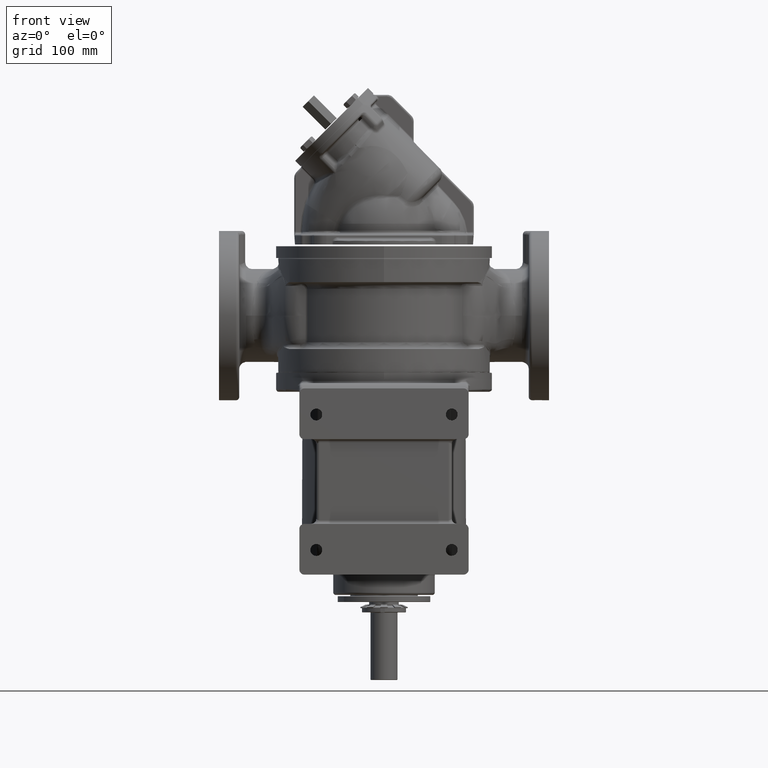
[diagram: clean part render]
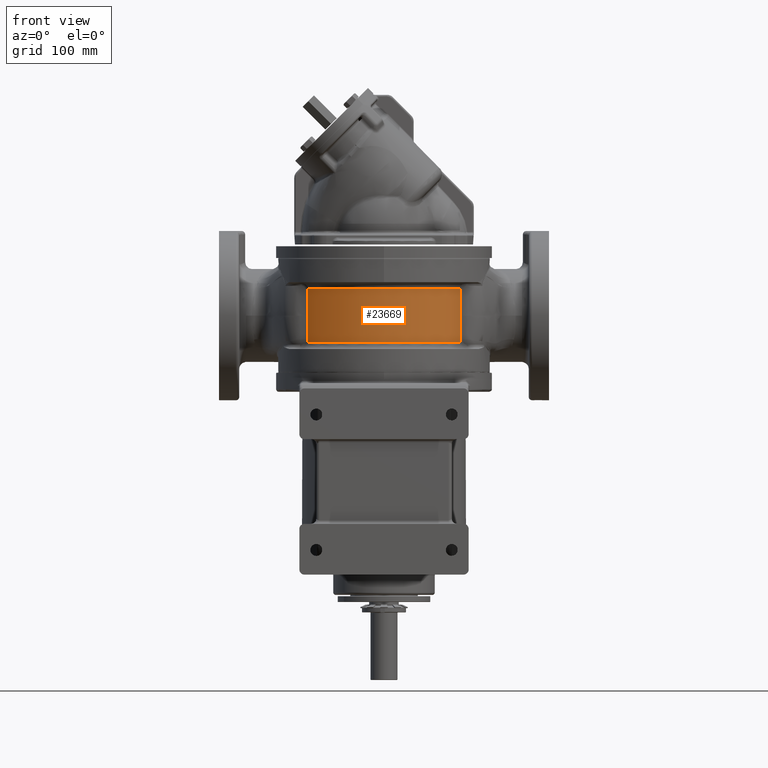
[diagram: same view with one face highlighted and labeled with its STEP entity id]
A machine part, front view. The second image highlights one B-rep face of the part: STEP entity #23669.
In plain terms, the highlighted cylindrical surface (partial cylindrical patch) has radius 109.5 mm, axis along (0, 0, 1).
Its self-contained STEP definition (entity closure, byte-faithful):
#3572=CARTESIAN_POINT('',(8.999031359892E1,-6.238584328480E1,4.835238431234E1));
#3573=CARTESIAN_POINT('',(8.999117552181E1,-6.238460036456E1,4.816861729059E1));
#3574=CARTESIAN_POINT('',(8.999577468744E1,-6.237796598252E1,4.780084763047E1));
#3575=CARTESIAN_POINT('',(9.001133770941E1,-6.235550883299E1,4.724811531999E1));
#3576=CARTESIAN_POINT('',(9.003557460130E1,-6.232051132897E1,4.669542013181E1));
#3577=CARTESIAN_POINT('',(9.006846689752E1,-6.227296912795E1,4.614343538226E1));
#3578=CARTESIAN_POINT('',(9.010996342124E1,-6.221291381492E1,4.559294146329E1));
#3579=CARTESIAN_POINT('',(9.015999085128E1,-6.214039809822E1,4.504460606646E1));
#3580=CARTESIAN_POINT('',(9.019892317816E1,-6.208385960216E1,4.468121546604E1));
#3581=CARTESIAN_POINT('',(9.021978270765E1,-6.205353179461E1,4.45E1));
#3583=CARTESIAN_POINT('',(1.862325559044E-14,1.486170166156E-14,4.45E1));
#3584=DIRECTION('',(0.E0,0.E0,1.E0));
#3585=DIRECTION('',(-8.239249562342E-1,-5.666989204987E-1,0.E0));
#3586=AXIS2_PLACEMENT_3D('',#3583,#3584,#3585);
#3588=CARTESIAN_POINT('',(-9.021978270765E1,-6.205353179461E1,4.45E1));
#3589=CARTESIAN_POINT('',(-9.019892287175E1,-6.208386004676E1,
4.468121808366E1));
#3590=CARTESIAN_POINT('',(-9.015999014153E1,-6.214039912868E1,
4.504461272539E1));
#3591=CARTESIAN_POINT('',(-9.010996267264E1,-6.221291489897E1,
4.559295004855E1));
#3592=CARTESIAN_POINT('',(-9.006846639574E1,-6.227296985355E1,
4.614344325430E1));
#3593=CARTESIAN_POINT('',(-9.003557428477E1,-6.232051178629E1,
4.669542597566E1));
#3594=CARTESIAN_POINT('',(-9.001133759793E1,-6.235550899346E1,
4.724811889659E1));
#3595=CARTESIAN_POINT('',(-8.999577468292E1,-6.237796599056E1,
4.780084888049E1));
#3596=CARTESIAN_POINT('',(-8.999117551974E1,-6.238460036428E1,
4.816861763772E1));
#3597=CARTESIAN_POINT('',(-8.999031359891E1,-6.238584328480E1,
4.835238431297E1));
#3599=CARTESIAN_POINT('',(-8.999031359891E1,-6.238584328480E1,
4.835238431297E1));
#3600=CARTESIAN_POINT('',(-8.997790777881E1,-6.240373717907E1,
5.100501328796E1));
#3601=CARTESIAN_POINT('',(-8.995916667424E1,-6.243075158706E1,
5.658980688493E1));
#3602=CARTESIAN_POINT('',(-8.994816945007E1,-6.244659125008E1,
6.580377580630E1));
#3603=CARTESIAN_POINT('',(-8.994758927249E1,-6.244742787812E1,
7.250783253117E1));
#3604=CARTESIAN_POINT('',(-8.994766737899E1,-6.244731489653E1,
7.599991781237E1));
#3606=CARTESIAN_POINT('',(-8.994766737899E1,-6.244731489653E1,
7.599991781237E1));
#3607=CARTESIAN_POINT('',(-8.994763776395E1,-6.244735734356E1,
7.969019512529E1));
#3608=CARTESIAN_POINT('',(-8.995469851128E1,-6.243718911470E1,
8.694093887418E1));
#3609=CARTESIAN_POINT('',(-8.998602794155E1,-6.239203912366E1,
9.718744253901E1));
#3610=CARTESIAN_POINT('',(-9.002172913101E1,-6.234051395286E1,
1.040790623278E2));
#3611=CARTESIAN_POINT('',(-9.004301205830E1,-6.230975830051E1,1.075E2));
#3613=CARTESIAN_POINT('',(2.618378289298E-14,-1.311591855899E-14,1.075E2));
#3614=DIRECTION('',(0.E0,0.E0,-1.E0));
#3615=DIRECTION('',(8.223106124046E-1,-5.690388885892E-1,0.E0));
#3616=AXIS2_PLACEMENT_3D('',#3613,#3614,#3615);
#3618=CARTESIAN_POINT('',(9.004301205830E1,-6.230975830051E1,1.075E2));
#3619=CARTESIAN_POINT('',(9.002183803751E1,-6.234035653673E1,1.040965566765E2));
#3620=CARTESIAN_POINT('',(8.998620399002E1,-6.239178526578E1,9.722819654097E1));
#3621=CARTESIAN_POINT('',(8.995475368244E1,-6.243710972401E1,8.697591468258E1));
#3622=CARTESIAN_POINT('',(8.994763727957E1,-6.244735792315E1,7.970515582463E1));
#3623=CARTESIAN_POINT('',(8.994766737899E1,-6.244731489653E1,7.599991781235E1));
#3625=CARTESIAN_POINT('',(8.994766737899E1,-6.244731489653E1,7.599991781235E1));
#3626=CARTESIAN_POINT('',(8.994759179015E1,-6.244742378618E1,7.251693971790E1));
#3627=CARTESIAN_POINT('',(8.994815901611E1,-6.244660641722E1,6.582491904482E1));
#3628=CARTESIAN_POINT('',(8.995913536746E1,-6.243079690183E1,5.660181389654E1));
#3629=CARTESIAN_POINT('',(8.997788325681E1,-6.240377196547E1,5.101011320820E1));
#3630=CARTESIAN_POINT('',(8.999031359892E1,-6.238584328480E1,4.835238431234E1));
#4146=CARTESIAN_POINT('',(9.021978270765E1,-6.205353179461E1,4.45E1));
#4239=CARTESIAN_POINT('',(-9.021978270765E1,-6.205353179461E1,4.45E1));
#16956=VERTEX_POINT('',#4146);
#16958=VERTEX_POINT('',#3572);
#16960=VERTEX_POINT('',#3625);
#16962=VERTEX_POINT('',#3618);
#16975=VERTEX_POINT('',#4239);
#16977=VERTEX_POINT('',#3597);
#16979=VERTEX_POINT('',#3604);
#16981=VERTEX_POINT('',#3611);
#23647=CARTESIAN_POINT('',(1.718915557036E-14,2.016856771927E-14,3.255E1));
#23648=DIRECTION('',(0.E0,0.E0,1.E0));
#23649=DIRECTION('',(-1.E0,0.E0,0.E0));
#23650=AXIS2_PLACEMENT_3D('',#23647,#23648,#23649);
#23651=CYLINDRICAL_SURFACE('',#23650,1.095E2);
#23653=ORIENTED_EDGE('',*,*,#23652,.T.);
#23655=ORIENTED_EDGE('',*,*,#23654,.F.);
#23657=ORIENTED_EDGE('',*,*,#23656,.T.);
#23659=ORIENTED_EDGE('',*,*,#23658,.T.);
#23661=ORIENTED_EDGE('',*,*,#23660,.T.);
#23662=ORIENTED_EDGE('',*,*,#23639,.F.);
#23664=ORIENTED_EDGE('',*,*,#23663,.T.);
#23666=ORIENTED_EDGE('',*,*,#23665,.T.);
#23667=EDGE_LOOP('',(#23653,#23655,#23657,#23659,#23661,#23662,#23664,#23666));
#23668=FACE_OUTER_BOUND('',#23667,.F.);
#23669=ADVANCED_FACE('',(#23668),#23651,.T.);
#3582=B_SPLINE_CURVE_WITH_KNOTS('',3,(#3572,#3573,#3574,#3575,#3576,#3577,#3578,
#3579,#3580,#3581),.UNSPECIFIED.,.F.,.F.,(4,1,1,1,1,1,1,4),(0.E0,
1.428571428571E-1,2.857142857143E-1,4.285714285714E-1,5.714285714286E-1,
7.142857142857E-1,8.571428571429E-1,1.E0),.UNSPECIFIED.);
#3587=CIRCLE('',#3586,1.095E2);
#3598=B_SPLINE_CURVE_WITH_KNOTS('',3,(#3588,#3589,#3590,#3591,#3592,#3593,#3594,
#3595,#3596,#3597),.UNSPECIFIED.,.F.,.F.,(4,1,1,1,1,1,1,4),(0.E0,
1.428571428571E-1,2.857142857143E-1,4.285714285714E-1,5.714285714286E-1,
7.142857142857E-1,8.571428571429E-1,1.E0),.UNSPECIFIED.);
#3605=B_SPLINE_CURVE_WITH_KNOTS('',3,(#3599,#3600,#3601,#3602,#3603,#3604),
.UNSPECIFIED.,.F.,.F.,(4,1,1,4),(0.E0,3.333333333333E-1,6.666666666667E-1,1.E0),
.UNSPECIFIED.);
#3612=B_SPLINE_CURVE_WITH_KNOTS('',3,(#3606,#3607,#3608,#3609,#3610,#3611),
.UNSPECIFIED.,.F.,.F.,(4,1,1,4),(0.E0,3.333333333333E-1,6.666666666667E-1,1.E0),
.UNSPECIFIED.);
#3617=CIRCLE('',#3616,1.095E2);
#3624=B_SPLINE_CURVE_WITH_KNOTS('',3,(#3618,#3619,#3620,#3621,#3622,#3623),
.UNSPECIFIED.,.F.,.F.,(4,1,1,4),(0.E0,3.333333333333E-1,6.666666666667E-1,1.E0),
.UNSPECIFIED.);
#3631=B_SPLINE_CURVE_WITH_KNOTS('',3,(#3625,#3626,#3627,#3628,#3629,#3630),
.UNSPECIFIED.,.F.,.F.,(4,1,1,4),(0.E0,3.333333333333E-1,6.666666666667E-1,1.E0),
.UNSPECIFIED.);
#23639=EDGE_CURVE('',#16962,#16981,#3617,.T.);
#23652=EDGE_CURVE('',#16958,#16956,#3582,.T.);
#23654=EDGE_CURVE('',#16975,#16956,#3587,.T.);
#23656=EDGE_CURVE('',#16975,#16977,#3598,.T.);
#23658=EDGE_CURVE('',#16977,#16979,#3605,.T.);
#23660=EDGE_CURVE('',#16979,#16981,#3612,.T.);
#23663=EDGE_CURVE('',#16962,#16960,#3624,.T.);
#23665=EDGE_CURVE('',#16960,#16958,#3631,.T.);